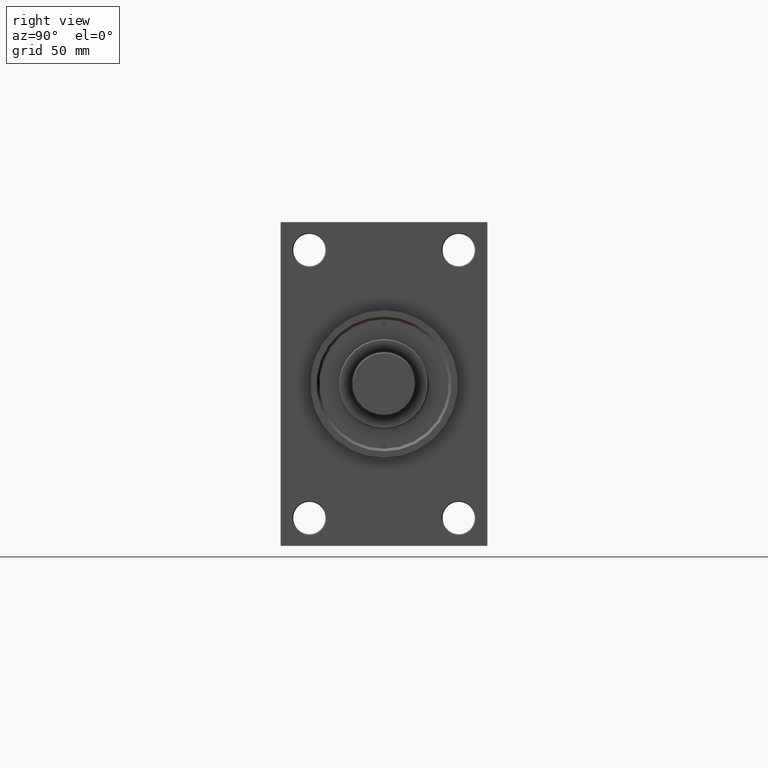
[diagram: clean part render]
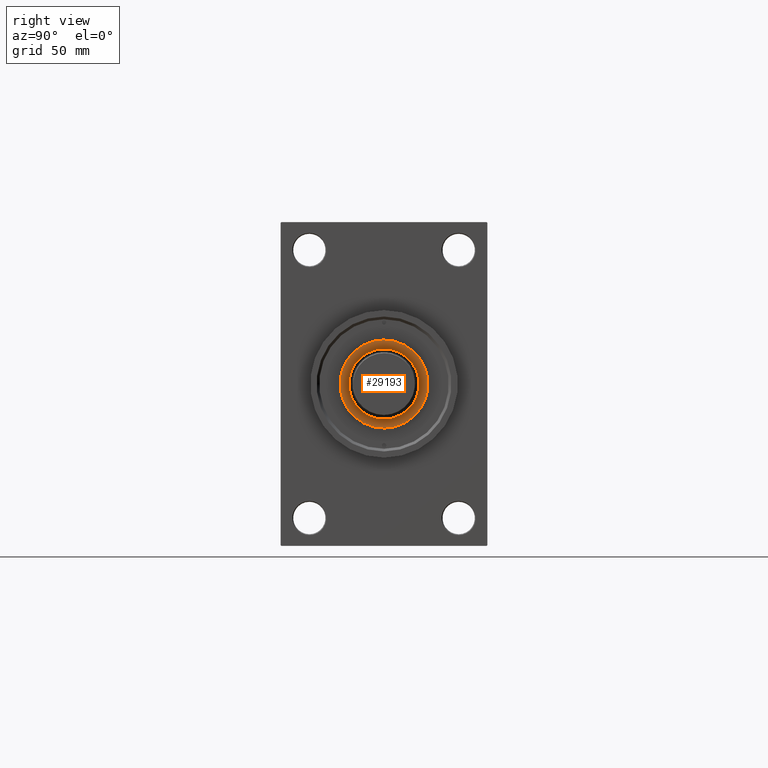
[diagram: same view with one face highlighted and labeled with its STEP entity id]
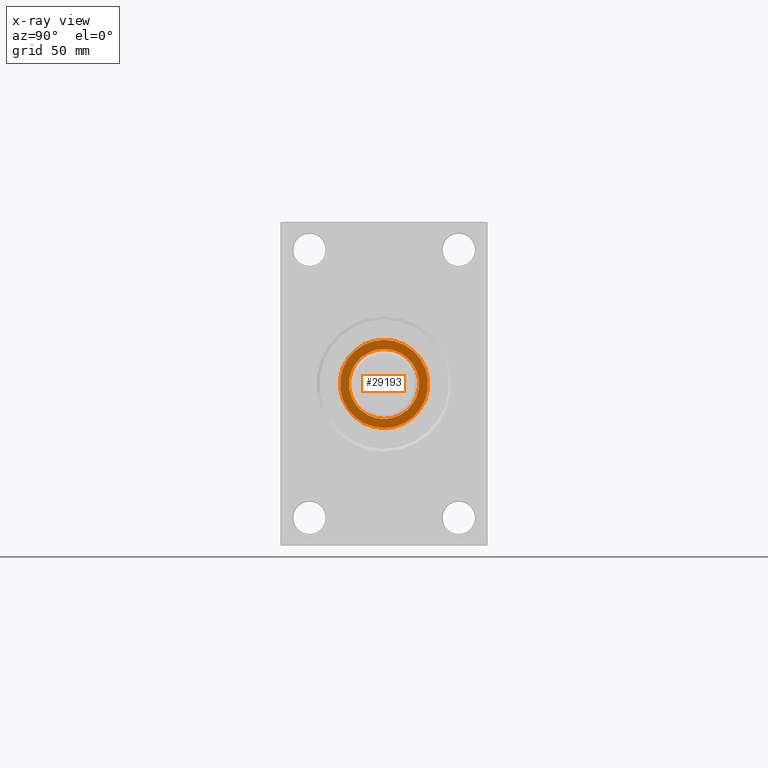
[diagram: x-ray of the same camera — body ghosted, the highlighted face saturated]
A machine part, right view. The second image highlights one B-rep face of the part: STEP entity #29193.
The next image is the same camera in x-ray: the body ghosted, the highlighted face saturated — about 0% of this face is hidden behind the body in this view.
In plain terms, the highlighted planar face has unit normal (1, -0, -0).
Its self-contained STEP definition (entity closure, byte-faithful):
#1129 = CARTESIAN_POINT ( 'NONE',  ( 0.000000000000000000, 0.000000000000000000, 52.25999999999999801 ) ) ;
#3459 = DIRECTION ( 'NONE',  ( 0.000000000000000000, 0.000000000000000000, 1.000000000000000000 ) ) ;
#7175 = VERTEX_POINT ( 'NONE', #32729 ) ;
#8081 = CARTESIAN_POINT ( 'NONE',  ( 0.000000000000000000, 0.000000000000000000, 52.25999999999999801 ) ) ;
#11510 = DIRECTION ( 'NONE',  ( 1.000000000000000000, 0.000000000000000000, 0.000000000000000000 ) ) ;
#11640 = FACE_OUTER_BOUND ( 'NONE', #34935, .T. ) ;
#15075 = DIRECTION ( 'NONE',  ( 1.000000000000000000, 0.000000000000000000, -0.000000000000000000 ) ) ;
#15136 = CIRCLE ( 'NONE', #21384, 24.49999999999998224 ) ;
#16877 = AXIS2_PLACEMENT_3D ( 'NONE', #30590, #34268, #11510 ) ;
#17119 = CARTESIAN_POINT ( 'NONE',  ( -24.49999999999998224, 0.000000000000000000, 52.25999999999999801 ) ) ;
#20342 = VERTEX_POINT ( 'NONE', #42755 ) ;
#20549 = CIRCLE ( 'NONE', #21323, 24.49999999999998224 ) ;
#21323 = AXIS2_PLACEMENT_3D ( 'NONE', #8081, #3459, #36967 ) ;
#21384 = AXIS2_PLACEMENT_3D ( 'NONE', #37666, #45957, #30574 ) ;
#23432 = AXIS2_PLACEMENT_3D ( 'NONE', #28811, #24175, #43475 ) ;
#23630 = DIRECTION ( 'NONE',  ( 0.000000000000000000, 0.000000000000000000, 1.000000000000000000 ) ) ;
#24175 = DIRECTION ( 'NONE',  ( 0.000000000000000000, 0.000000000000000000, 1.000000000000000000 ) ) ;
#24221 = CIRCLE ( 'NONE', #23432, 19.50000000000000000 ) ;
#25587 = ORIENTED_EDGE ( 'NONE', *, *, #45005, .T. ) ;
#27198 = EDGE_CURVE ( 'NONE', #36651, #7175, #37989, .T. ) ;
#28811 = CARTESIAN_POINT ( 'NONE',  ( 0.000000000000000000, 0.000000000000000000, 52.25999999999999801 ) ) ;
#29193 = ADVANCED_FACE ( 'NONE', ( #37820, #11640 ), #38309, .T. ) ;
#30574 = DIRECTION ( 'NONE',  ( 1.000000000000000000, 0.000000000000000000, 0.000000000000000000 ) ) ;
#30590 = CARTESIAN_POINT ( 'NONE',  ( 0.000000000000000000, 0.000000000000000000, 52.25999999999999801 ) ) ;
#32729 = CARTESIAN_POINT ( 'NONE',  ( -19.50000000000000000, 2.388061258337338939E-15, 52.25999999999999801 ) ) ;
#33415 = ORIENTED_EDGE ( 'NONE', *, *, #34831, .F. ) ;
#34268 = DIRECTION ( 'NONE',  ( 0.000000000000000000, 0.000000000000000000, 1.000000000000000000 ) ) ;
#34718 = ORIENTED_EDGE ( 'NONE', *, *, #27198, .F. ) ;
#34831 = EDGE_CURVE ( 'NONE', #7175, #36651, #24221, .T. ) ;
#34935 = EDGE_LOOP ( 'NONE', ( #25587, #36656 ) ) ;
#36651 = VERTEX_POINT ( 'NONE', #39930 ) ;
#36656 = ORIENTED_EDGE ( 'NONE', *, *, #47255, .T. ) ;
#36939 = VERTEX_POINT ( 'NONE', #17119 ) ;
#36967 = DIRECTION ( 'NONE',  ( 1.000000000000000000, 0.000000000000000000, 0.000000000000000000 ) ) ;
#37285 = AXIS2_PLACEMENT_3D ( 'NONE', #1129, #23630, #15075 ) ;
#37666 = CARTESIAN_POINT ( 'NONE',  ( 0.000000000000000000, 0.000000000000000000, 52.25999999999999801 ) ) ;
#37820 = FACE_BOUND ( 'NONE', #46078, .T. ) ;
#37989 = CIRCLE ( 'NONE', #16877, 19.50000000000000000 ) ;
#38309 = PLANE ( 'NONE',  #37285 ) ;
#39930 = CARTESIAN_POINT ( 'NONE',  ( 19.50000000000000000, 0.000000000000000000, 52.25999999999999801 ) ) ;
#42755 = CARTESIAN_POINT ( 'NONE',  ( 24.49999999999998224, 3.031000827889698072E-15, 52.25999999999999801 ) ) ;
#43475 = DIRECTION ( 'NONE',  ( 1.000000000000000000, 0.000000000000000000, 0.000000000000000000 ) ) ;
#45005 = EDGE_CURVE ( 'NONE', #36939, #20342, #20549, .T. ) ;
#45957 = DIRECTION ( 'NONE',  ( 0.000000000000000000, 0.000000000000000000, 1.000000000000000000 ) ) ;
#46078 = EDGE_LOOP ( 'NONE', ( #34718, #33415 ) ) ;
#47255 = EDGE_CURVE ( 'NONE', #20342, #36939, #15136, .T. ) ;